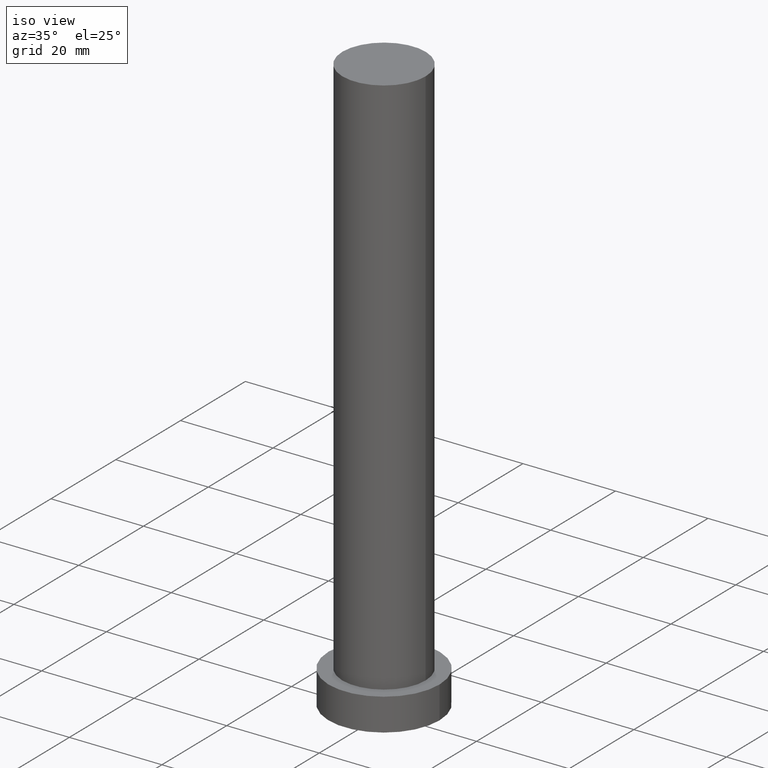
[diagram: clean part render]
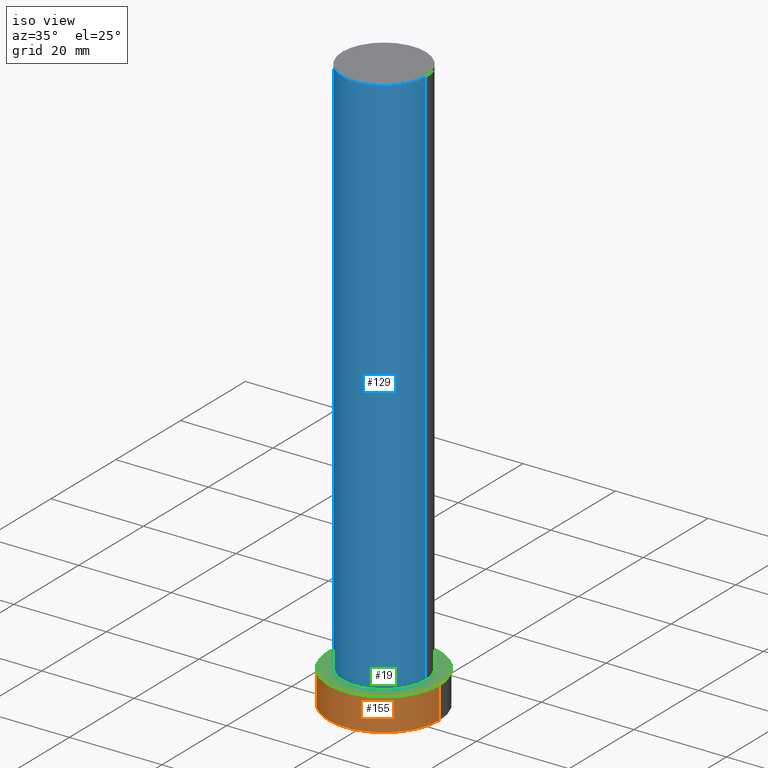
[diagram: same view with three faces highlighted in distinct colors, each labeled with its STEP entity id]
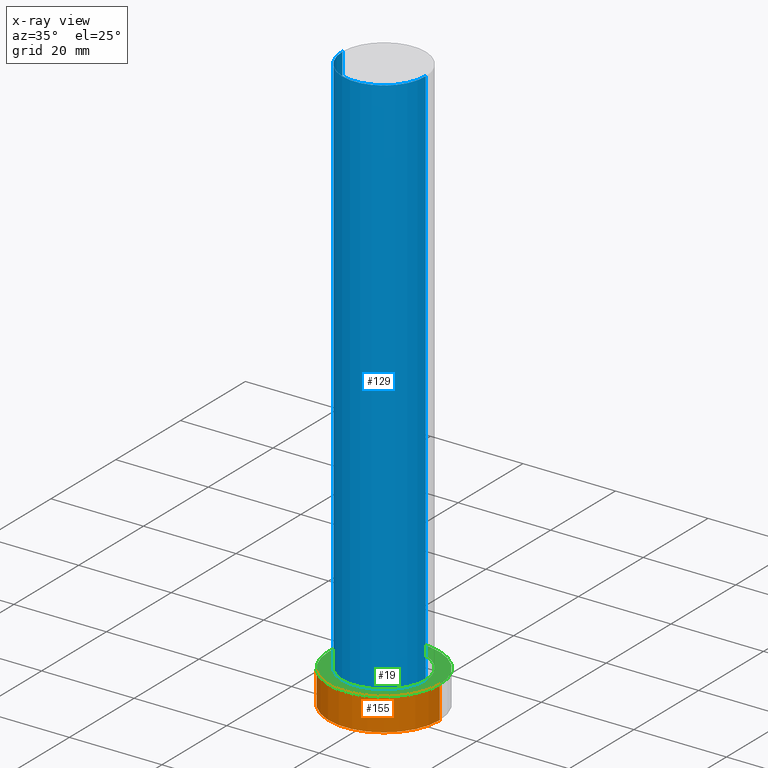
[diagram: x-ray of the same camera — body ghosted, the three highlighted faces saturated]
A machine part, iso view with three faces highlighted in distinct colors.
The next image is the same camera in x-ray (body ghosted, the three faces saturated) — at least one of them is partly hidden behind the body in this view.
Their STEP definitions:

[orange] entity #155 — the highlighted cylindrical surface (partial cylindrical patch) has radius 12 mm, axis along (-0, -0, -1).
#3 = CARTESIAN_POINT ( 'NONE',  ( 12.00000000000000178, 1.469576158976824144E-15, 7.000000000000000000 ) ) ;
#6 = AXIS2_PLACEMENT_3D ( 'NONE', #202, #67, #137 ) ;
#28 = LINE ( 'NONE', #47, #36 ) ;
#30 = DIRECTION ( 'NONE',  ( 1.000000000000000000, 0.000000000000000000, 0.000000000000000000 ) ) ;
#35 = AXIS2_PLACEMENT_3D ( 'NONE', #208, #139, #30 ) ;
#36 = VECTOR ( 'NONE', #53, 1000.000000000000000 ) ;
#37 = ORIENTED_EDGE ( 'NONE', *, *, #173, .T. ) ;
#39 = VERTEX_POINT ( 'NONE', #187 ) ;
#47 = CARTESIAN_POINT ( 'NONE',  ( -12.00000000000000178, 0.000000000000000000, 7.000000000000000000 ) ) ;
#53 = DIRECTION ( 'NONE',  ( -0.000000000000000000, -0.000000000000000000, -1.000000000000000000 ) ) ;
#57 = CARTESIAN_POINT ( 'NONE',  ( -12.00000000000000178, 0.000000000000000000, 0.000000000000000000 ) ) ;
#64 = EDGE_CURVE ( 'NONE', #196, #39, #97, .T. ) ;
#67 = DIRECTION ( 'NONE',  ( -0.000000000000000000, -0.000000000000000000, -1.000000000000000000 ) ) ;
#76 = CARTESIAN_POINT ( 'NONE',  ( 12.00000000000000178, 1.469576158976824144E-15, 7.000000000000000000 ) ) ;
#79 = EDGE_CURVE ( 'NONE', #240, #39, #179, .T. ) ;
#90 = DIRECTION ( 'NONE',  ( 0.000000000000000000, 0.000000000000000000, 1.000000000000000000 ) ) ;
#97 = CIRCLE ( 'NONE', #35, 12.00000000000000178 ) ;
#105 = ORIENTED_EDGE ( 'NONE', *, *, #79, .F. ) ;
#123 = CARTESIAN_POINT ( 'NONE',  ( 0.000000000000000000, 0.000000000000000000, 7.000000000000000000 ) ) ;
#137 = DIRECTION ( 'NONE',  ( -1.000000000000000000, 0.000000000000000000, 0.000000000000000000 ) ) ;
#139 = DIRECTION ( 'NONE',  ( 0.000000000000000000, 0.000000000000000000, 1.000000000000000000 ) ) ;
#145 = ORIENTED_EDGE ( 'NONE', *, *, #247, .F. ) ;
#155 = ADVANCED_FACE ( 'NONE', ( #244 ), #211, .T. ) ;
#166 = VECTOR ( 'NONE', #229, 1000.000000000000000 ) ;
#167 = AXIS2_PLACEMENT_3D ( 'NONE', #123, #90, #188 ) ;
#173 = EDGE_CURVE ( 'NONE', #232, #196, #28, .T. ) ;
#179 = LINE ( 'NONE', #76, #166 ) ;
#187 = CARTESIAN_POINT ( 'NONE',  ( 12.00000000000000178, 1.469576158976824144E-15, 0.000000000000000000 ) ) ;
#188 = DIRECTION ( 'NONE',  ( 1.000000000000000000, 0.000000000000000000, 0.000000000000000000 ) ) ;
#192 = CARTESIAN_POINT ( 'NONE',  ( -12.00000000000000178, 0.000000000000000000, 7.000000000000000000 ) ) ;
#196 = VERTEX_POINT ( 'NONE', #57 ) ;
#202 = CARTESIAN_POINT ( 'NONE',  ( 0.000000000000000000, 0.000000000000000000, 7.000000000000000000 ) ) ;
#208 = CARTESIAN_POINT ( 'NONE',  ( 0.000000000000000000, 0.000000000000000000, 0.000000000000000000 ) ) ;
#210 = EDGE_LOOP ( 'NONE', ( #105, #145, #37, #246 ) ) ;
#211 = CYLINDRICAL_SURFACE ( 'NONE', #6, 12.00000000000000178 ) ;
#229 = DIRECTION ( 'NONE',  ( -0.000000000000000000, -0.000000000000000000, -1.000000000000000000 ) ) ;
#232 = VERTEX_POINT ( 'NONE', #192 ) ;
#233 = CIRCLE ( 'NONE', #167, 12.00000000000000178 ) ;
#240 = VERTEX_POINT ( 'NONE', #3 ) ;
#244 = FACE_OUTER_BOUND ( 'NONE', #210, .T. ) ;
#246 = ORIENTED_EDGE ( 'NONE', *, *, #64, .T. ) ;
#247 = EDGE_CURVE ( 'NONE', #232, #240, #233, .T. ) ;

[blue] entity #129 — the highlighted cylindrical surface (partial cylindrical patch) has radius 9 mm, axis along (-0, -0, -1).
#17 = AXIS2_PLACEMENT_3D ( 'NONE', #227, #134, #183 ) ;
#18 = VERTEX_POINT ( 'NONE', #226 ) ;
#22 = CARTESIAN_POINT ( 'NONE',  ( 9.000000000000000000, 1.102182119232617714E-15, 7.000000000000000000 ) ) ;
#25 = CARTESIAN_POINT ( 'NONE',  ( -9.000000000000000000, 0.000000000000000000, 125.0000000000000000 ) ) ;
#27 = CARTESIAN_POINT ( 'NONE',  ( 0.000000000000000000, 0.000000000000000000, 125.0000000000000000 ) ) ;
#52 = DIRECTION ( 'NONE',  ( -0.000000000000000000, -0.000000000000000000, -1.000000000000000000 ) ) ;
#56 = LINE ( 'NONE', #221, #61 ) ;
#58 = EDGE_CURVE ( 'NONE', #18, #191, #56, .T. ) ;
#61 = VECTOR ( 'NONE', #52, 1000.000000000000000 ) ;
#71 = CARTESIAN_POINT ( 'NONE',  ( -9.000000000000000000, 0.000000000000000000, 7.000000000000000000 ) ) ;
#72 = EDGE_CURVE ( 'NONE', #242, #18, #197, .T. ) ;
#75 = CARTESIAN_POINT ( 'NONE',  ( 0.000000000000000000, 0.000000000000000000, 7.000000000000000000 ) ) ;
#89 = AXIS2_PLACEMENT_3D ( 'NONE', #27, #122, #161 ) ;
#94 = DIRECTION ( 'NONE',  ( 1.000000000000000000, 0.000000000000000000, 0.000000000000000000 ) ) ;
#98 = LINE ( 'NONE', #251, #128 ) ;
#109 = EDGE_CURVE ( 'NONE', #242, #162, #98, .T. ) ;
#112 = CYLINDRICAL_SURFACE ( 'NONE', #17, 9.000000000000000000 ) ;
#117 = EDGE_CURVE ( 'NONE', #162, #191, #250, .T. ) ;
#122 = DIRECTION ( 'NONE',  ( 0.000000000000000000, 0.000000000000000000, 1.000000000000000000 ) ) ;
#126 = AXIS2_PLACEMENT_3D ( 'NONE', #75, #159, #94 ) ;
#128 = VECTOR ( 'NONE', #235, 1000.000000000000000 ) ;
#129 = ADVANCED_FACE ( 'NONE', ( #207 ), #112, .T. ) ;
#132 = EDGE_LOOP ( 'NONE', ( #201, #184, #249, #177 ) ) ;
#134 = DIRECTION ( 'NONE',  ( -0.000000000000000000, -0.000000000000000000, -1.000000000000000000 ) ) ;
#159 = DIRECTION ( 'NONE',  ( 0.000000000000000000, 0.000000000000000000, 1.000000000000000000 ) ) ;
#161 = DIRECTION ( 'NONE',  ( 1.000000000000000000, 0.000000000000000000, 0.000000000000000000 ) ) ;
#162 = VERTEX_POINT ( 'NONE', #71 ) ;
#177 = ORIENTED_EDGE ( 'NONE', *, *, #117, .T. ) ;
#183 = DIRECTION ( 'NONE',  ( -1.000000000000000000, 0.000000000000000000, 0.000000000000000000 ) ) ;
#184 = ORIENTED_EDGE ( 'NONE', *, *, #72, .F. ) ;
#191 = VERTEX_POINT ( 'NONE', #22 ) ;
#197 = CIRCLE ( 'NONE', #89, 9.000000000000000000 ) ;
#201 = ORIENTED_EDGE ( 'NONE', *, *, #58, .F. ) ;
#207 = FACE_OUTER_BOUND ( 'NONE', #132, .T. ) ;
#221 = CARTESIAN_POINT ( 'NONE',  ( 9.000000000000000000, 1.102182119232617714E-15, 125.0000000000000000 ) ) ;
#226 = CARTESIAN_POINT ( 'NONE',  ( 9.000000000000000000, 1.102182119232617714E-15, 125.0000000000000000 ) ) ;
#227 = CARTESIAN_POINT ( 'NONE',  ( 0.000000000000000000, 0.000000000000000000, 125.0000000000000000 ) ) ;
#235 = DIRECTION ( 'NONE',  ( -0.000000000000000000, -0.000000000000000000, -1.000000000000000000 ) ) ;
#242 = VERTEX_POINT ( 'NONE', #25 ) ;
#249 = ORIENTED_EDGE ( 'NONE', *, *, #109, .T. ) ;
#250 = CIRCLE ( 'NONE', #126, 9.000000000000000000 ) ;
#251 = CARTESIAN_POINT ( 'NONE',  ( -9.000000000000000000, 0.000000000000000000, 125.0000000000000000 ) ) ;

[green] entity #19 — the highlighted planar face has unit normal (0, 0, 1).
#3 = CARTESIAN_POINT ( 'NONE',  ( 12.00000000000000178, 1.469576158976824144E-15, 7.000000000000000000 ) ) ;
#5 = DIRECTION ( 'NONE',  ( 0.000000000000000000, 0.000000000000000000, 1.000000000000000000 ) ) ;
#13 = EDGE_CURVE ( 'NONE', #191, #162, #146, .T. ) ;
#14 = AXIS2_PLACEMENT_3D ( 'NONE', #224, #23, #70 ) ;
#19 = ADVANCED_FACE ( 'NONE', ( #206, #111 ), #86, .T. ) ;
#20 = AXIS2_PLACEMENT_3D ( 'NONE', #88, #5, #172 ) ;
#21 = DIRECTION ( 'NONE',  ( 1.000000000000000000, 0.000000000000000000, 0.000000000000000000 ) ) ;
#22 = CARTESIAN_POINT ( 'NONE',  ( 9.000000000000000000, 1.102182119232617714E-15, 7.000000000000000000 ) ) ;
#23 = DIRECTION ( 'NONE',  ( 0.000000000000000000, 0.000000000000000000, 1.000000000000000000 ) ) ;
#24 = EDGE_CURVE ( 'NONE', #240, #232, #178, .T. ) ;
#70 = DIRECTION ( 'NONE',  ( 1.000000000000000000, 0.000000000000000000, 0.000000000000000000 ) ) ;
#71 = CARTESIAN_POINT ( 'NONE',  ( -9.000000000000000000, 0.000000000000000000, 7.000000000000000000 ) ) ;
#74 = CARTESIAN_POINT ( 'NONE',  ( 0.000000000000000000, 0.000000000000000000, 7.000000000000000000 ) ) ;
#75 = CARTESIAN_POINT ( 'NONE',  ( 0.000000000000000000, 0.000000000000000000, 7.000000000000000000 ) ) ;
#80 = EDGE_LOOP ( 'NONE', ( #245, #165 ) ) ;
#85 = ORIENTED_EDGE ( 'NONE', *, *, #247, .T. ) ;
#86 = PLANE ( 'NONE',  #20 ) ;
#88 = CARTESIAN_POINT ( 'NONE',  ( 0.000000000000000000, 0.000000000000000000, 7.000000000000000000 ) ) ;
#90 = DIRECTION ( 'NONE',  ( 0.000000000000000000, 0.000000000000000000, 1.000000000000000000 ) ) ;
#93 = DIRECTION ( 'NONE',  ( 0.000000000000000000, 0.000000000000000000, 1.000000000000000000 ) ) ;
#94 = DIRECTION ( 'NONE',  ( 1.000000000000000000, 0.000000000000000000, 0.000000000000000000 ) ) ;
#100 = EDGE_LOOP ( 'NONE', ( #85, #243 ) ) ;
#111 = FACE_OUTER_BOUND ( 'NONE', #100, .T. ) ;
#117 = EDGE_CURVE ( 'NONE', #162, #191, #250, .T. ) ;
#123 = CARTESIAN_POINT ( 'NONE',  ( 0.000000000000000000, 0.000000000000000000, 7.000000000000000000 ) ) ;
#126 = AXIS2_PLACEMENT_3D ( 'NONE', #75, #159, #94 ) ;
#146 = CIRCLE ( 'NONE', #151, 9.000000000000000000 ) ;
#151 = AXIS2_PLACEMENT_3D ( 'NONE', #74, #93, #21 ) ;
#159 = DIRECTION ( 'NONE',  ( 0.000000000000000000, 0.000000000000000000, 1.000000000000000000 ) ) ;
#162 = VERTEX_POINT ( 'NONE', #71 ) ;
#165 = ORIENTED_EDGE ( 'NONE', *, *, #13, .F. ) ;
#167 = AXIS2_PLACEMENT_3D ( 'NONE', #123, #90, #188 ) ;
#172 = DIRECTION ( 'NONE',  ( 1.000000000000000000, 0.000000000000000000, -0.000000000000000000 ) ) ;
#178 = CIRCLE ( 'NONE', #14, 12.00000000000000178 ) ;
#188 = DIRECTION ( 'NONE',  ( 1.000000000000000000, 0.000000000000000000, 0.000000000000000000 ) ) ;
#191 = VERTEX_POINT ( 'NONE', #22 ) ;
#192 = CARTESIAN_POINT ( 'NONE',  ( -12.00000000000000178, 0.000000000000000000, 7.000000000000000000 ) ) ;
#206 = FACE_BOUND ( 'NONE', #80, .T. ) ;
#224 = CARTESIAN_POINT ( 'NONE',  ( 0.000000000000000000, 0.000000000000000000, 7.000000000000000000 ) ) ;
#232 = VERTEX_POINT ( 'NONE', #192 ) ;
#233 = CIRCLE ( 'NONE', #167, 12.00000000000000178 ) ;
#240 = VERTEX_POINT ( 'NONE', #3 ) ;
#243 = ORIENTED_EDGE ( 'NONE', *, *, #24, .T. ) ;
#245 = ORIENTED_EDGE ( 'NONE', *, *, #117, .F. ) ;
#247 = EDGE_CURVE ( 'NONE', #232, #240, #233, .T. ) ;
#250 = CIRCLE ( 'NONE', #126, 9.000000000000000000 ) ;